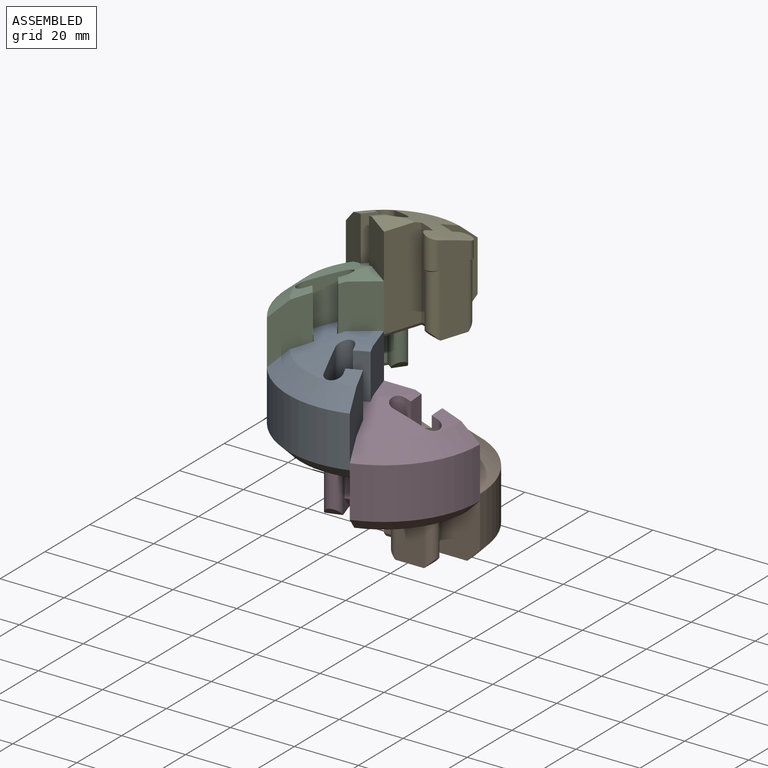
[diagram: assembled view]
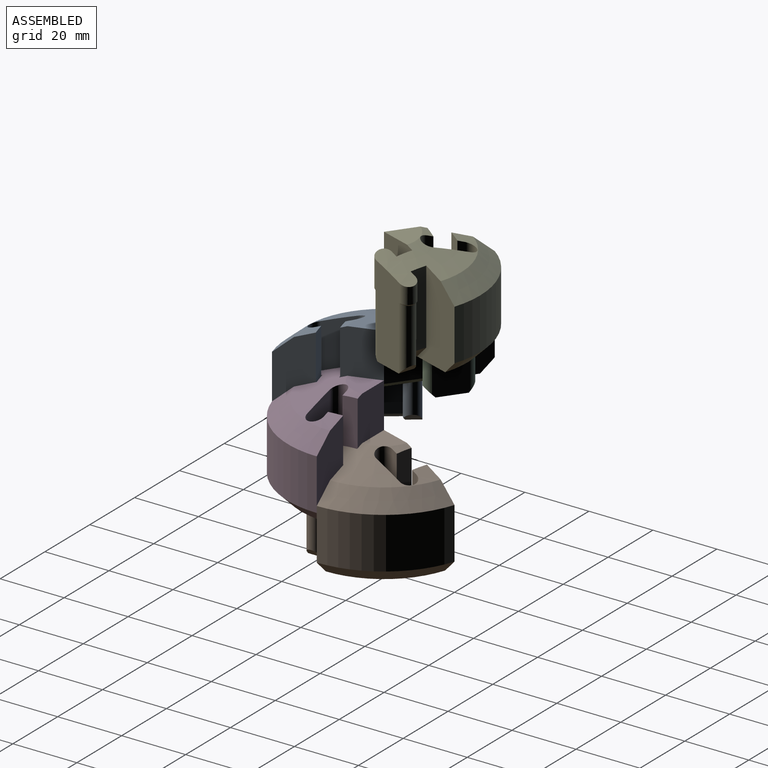
[diagram: assembled view, second angle]
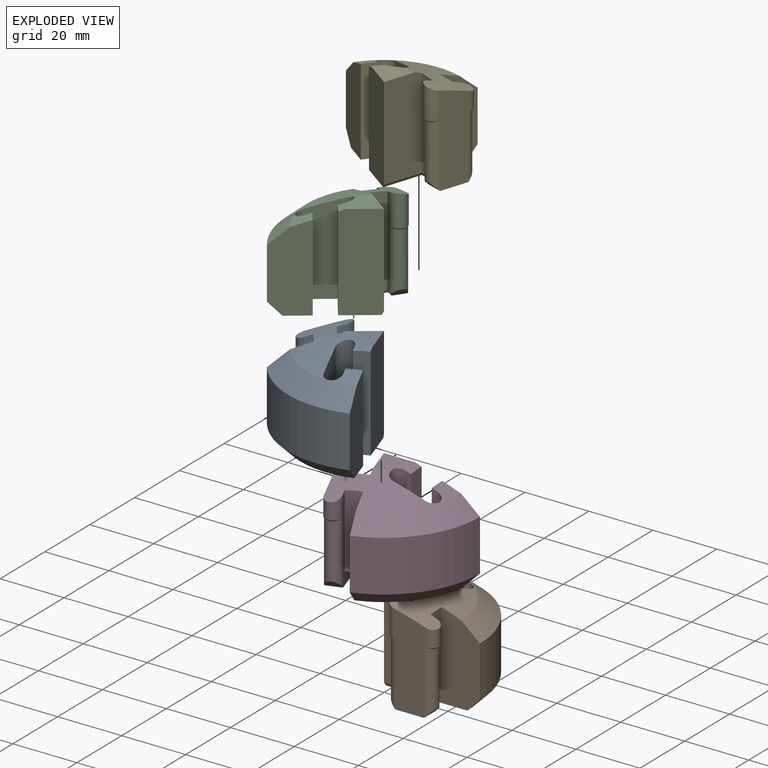
[diagram: exploded view]
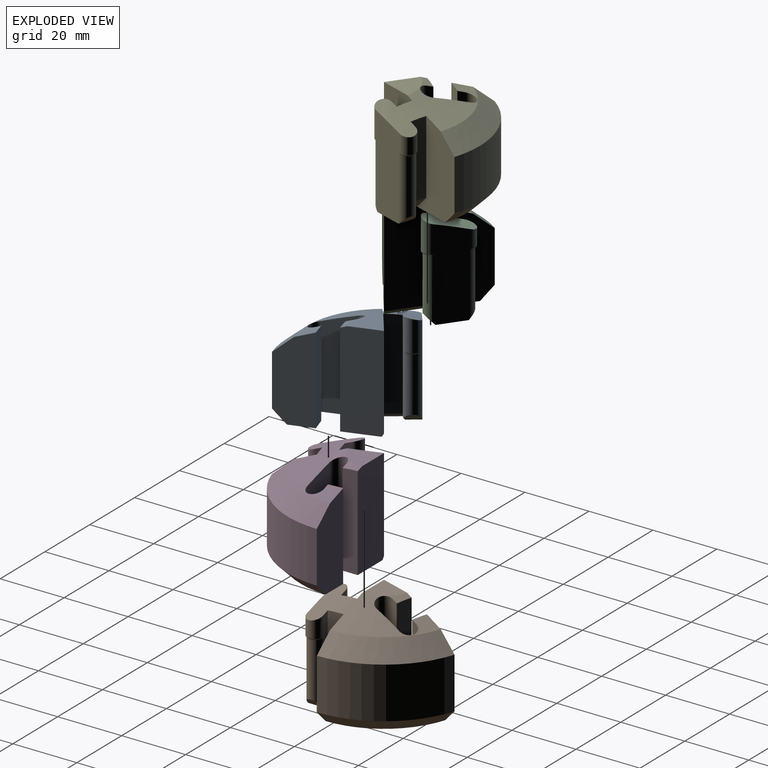
[diagram: exploded view, second angle]
ASSEMBLY  parts=5 mates=8
PART A: 46 faces, bbox 46.9x30.4x30.4 mm
  f0: plane 26.85x1.68mm, normal (-0.31,-0.95,0), area 43.7mm2, adj f3,f4,f28,f33,f34,f36
  f1: plane 9.8x9.32mm, normal (0,0,1), area 60.3mm2, adj f3,f9,f10
  f2: plane 27.05x11.18mm, normal (0.31,0.95,0), area 277mm2, adj f3,f4,f6,f8,f15,f28
  f3: cone r=24.1mm half-angle=70.7deg, axis (0,0,-1), area 317mm2, adj f0,f1,f2,f5,f7,f9,f10,f11
  f4: plane 34.73x25.81mm, normal (0,0,-1), area 368.2mm2, adj f0,f2,f5,f7,f8,f10,f12,f16
  f5: plane 26.92x6.03mm, normal (1,0,0), area 51.1mm2, adj f3,f4,f11,f19,f20,f24,f42
  f6: cylinder r=30mm len=28.53mm, axis (0,0,-1), area 603.2mm2, adj f2,f7,f8,f15
  f7: plane 27.13x16mm, normal (-1,0,0), area 291.8mm2, adj f3,f4,f6,f8,f11,f15,f42
  f8: cone r=30mm half-angle=45deg, axis (0,0,1), area 199mm2, adj f2,f4,f6,f7
  f9: plane 29x12mm, normal (-1,0,0), area 347.2mm2, adj f1,f3,f10,f13,f43
  f10: plane 30x11.18mm, normal (0.31,0.95,0), area 351.5mm2, adj f1,f3,f4,f9,f30,f43
  f11: plane 23.5x5.37mm, normal (0,-1,0), area 115.3mm2, adj f3,f5,f7,f42
  f12: plane 28.48x10mm, normal (-1,0,0), area 251mm2, adj f3,f4,f18,f19,f20,f21,f22,f27
  f13: plane 28.23x5mm, normal (0,1,0), area 140.6mm2, adj f3,f9,f14,f44
  f14: plane 28.58x2.07mm, normal (1,0,0), area 46.9mm2, adj f3,f13,f18,f21,f25,f45
  f15: cone r=30mm half-angle=49.7deg, axis (0,0,-1), area 262.9mm2, adj f2,f3,f6,f7
  f16: plane 4.87x2.5mm, normal (0,0.71,-0.71), area 13.5mm2, adj f4,f18,f45
  f17: plane 5x2.5mm, normal (0,-0.71,-0.71), area 13.9mm2, adj f4,f19
  f18: cylinder r=2.5mm len=20mm, axis (0,0,-1), area 142.3mm2, adj f12,f14,f16,f25,f26,f27,f45
  f19: cylinder r=2.5mm len=20mm, axis (0,0,-1), area 142.7mm2, adj f5,f12,f17,f22,f23,f24
  f20: cylinder r=2.5mm len=6.22mm, axis (0,0,1), area 43.4mm2, adj f3,f5,f12,f23
  f21: cylinder r=2.5mm len=9.93mm, axis (0,0,1), area 74.3mm2, adj f3,f12,f14,f26
  f22: plane 0.53x0.08mm, normal (-0.71,0,-0.71), area 0mm2, adj f12,f19,f23
  f23: cone r=2mm half-angle=45deg, axis (0,0,1), area 3.5mm2, adj f19,f20,f22,f24
  f24: plane 0.53x0.08mm, normal (0.71,0,-0.71), area 0mm2, adj f5,f19,f23
  f25: plane 0.53x0.08mm, normal (0.71,0,-0.71), area 0mm2, adj f14,f18,f26
  f26: cone r=2mm half-angle=45deg, axis (0,0,1), area 3.5mm2, adj f18,f21,f25,f27
  f27: plane 0.53x0.08mm, normal (-0.71,0,-0.71), area 0mm2, adj f12,f18,f26
  f28: plane 27.37x4.85mm, normal (-0.95,0.31,0), area 128.1mm2, adj f0,f2,f3,f4
  f29: plane 28.48x9.51mm, normal (0.31,0.95,0), area 265.5mm2, adj f3,f4,f32,f33,f34,f35,f38,f39
  f30: plane 29.32x4.52mm, normal (0.95,-0.31,0), area 138.7mm2, adj f3,f4,f10,f31
  f31: plane 29.6x1.71mm, normal (-0.31,-0.95,0), area 48.5mm2, adj f3,f4,f30,f32,f35,f41
  f32: cylinder r=2.62mm len=5.5mm, axis (0,0,1), area 43.3mm2, adj f4,f29,f31,f39,f40,f41
  f33: cylinder r=2.62mm len=5.5mm, axis (0,0,1), area 43.3mm2, adj f0,f4,f29,f36,f37,f38
  f34: cylinder r=2.62mm len=20.74mm, axis (0,0,-1), area 165.1mm2, adj f0,f3,f29,f37
  f35: cylinder r=2.62mm len=24.5mm, axis (0,0,-1), area 197.9mm2, adj f3,f29,f31,f40
  f36: plane 0.5x0.22mm, normal (-0.22,-0.67,0.71), area 0mm2, adj f0,f33,f37
  f37: cone r=2.12mm half-angle=45deg, axis (0,0,1), area 3.7mm2, adj f33,f34,f36,f38
  f38: plane 0.51x0.18mm, normal (0.22,0.67,0.71), area 0mm2, adj f29,f33,f37
  f39: plane 0.5x0.22mm, normal (0.22,0.67,0.71), area 0mm2, adj f29,f32,f40
  f40: cone r=2.12mm half-angle=45deg, axis (0,0,1), area 3.7mm2, adj f32,f35,f39,f41
  f41: plane 0.51x0.18mm, normal (-0.22,-0.67,0.71), area 0mm2, adj f31,f32,f40
  f42: plane 5x4mm, normal (0,-0.71,-0.71), area 28.3mm2, adj f4,f5,f7,f11
  f43: plane 12.6x1mm, normal (-0.86,0,-0.51), area 14.2mm2, adj f4,f9,f10,f44
  f44: plane 6.2x1mm, normal (0,0.86,-0.51), area 6.5mm2, adj f4,f13,f43,f45
  f45: plane 2.99x1.11mm, normal (0.86,0,-0.51), area 2.6mm2, adj f4,f14,f16,f18,f44
PART B: same geometry as A
PART C: same geometry as A
PART D: same geometry as A
PART E: same geometry as A
PLACE A rot(axis=(0,0,-1),54deg) t=(0,0,28)mm
PLACE B rot(axis=(0,0,1),90deg) t=(0,0,0)mm
PLACE C rot(axis=(0,0,-1),126deg) t=(0,0,42)mm
PLACE D rot(axis=(0,0,1),18deg) t=(0,0,14)mm
PLACE E rot(axis=(0,0,1),162deg) t=(0,0,56)mm
MATE cylindrical D.f4 <-> B.f4  axis (0,0,-1) through (26,0,14)mm
MATE cylindrical A.f4 <-> D.f4  axis (0,0,-1) through (8.03,-24.73,28)mm
MATE cylindrical E.f4 <-> C.f4  axis (0,0,-1) through (-21.03,15.28,56)mm
MATE cylindrical E.f6 <-> C.f6  axis (0,0,-1) through (0,0,56)mm
MATE cylindrical C.f4 <-> A.f4  axis (0,0,-1) through (-21.03,-15.28,42)mm
MATE cylindrical D.f6 <-> B.f6  axis (0,0,-1) through (0,0,14)mm
MATE cylindrical A.f6 <-> C.f6  axis (0,0,-1) through (0,0,28)mm
MATE cylindrical A.f6 <-> D.f6  axis (0,0,-1) through (0,0,28)mm
